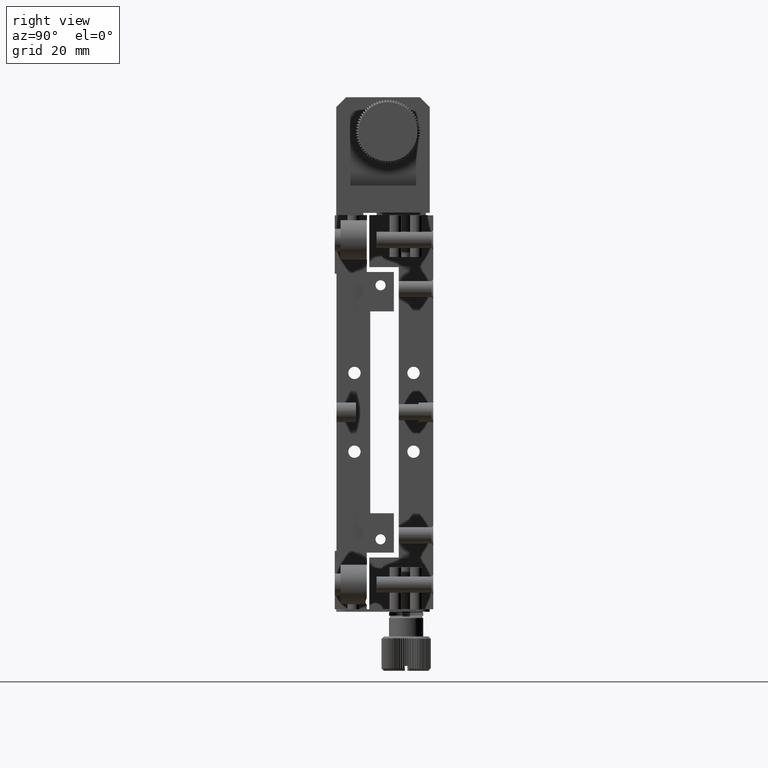
[diagram: clean part render]
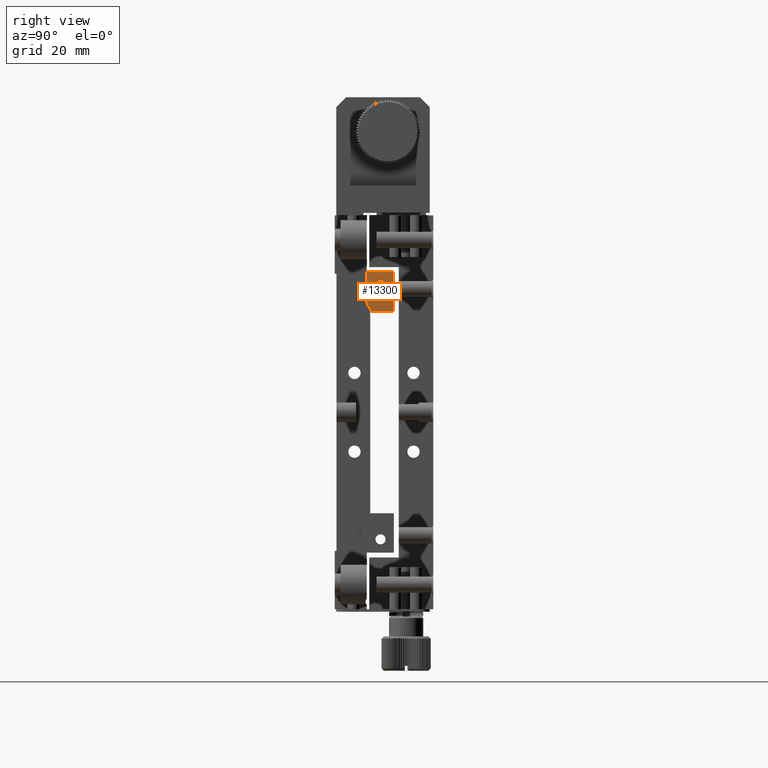
[diagram: same view with one face highlighted and labeled with its STEP entity id]
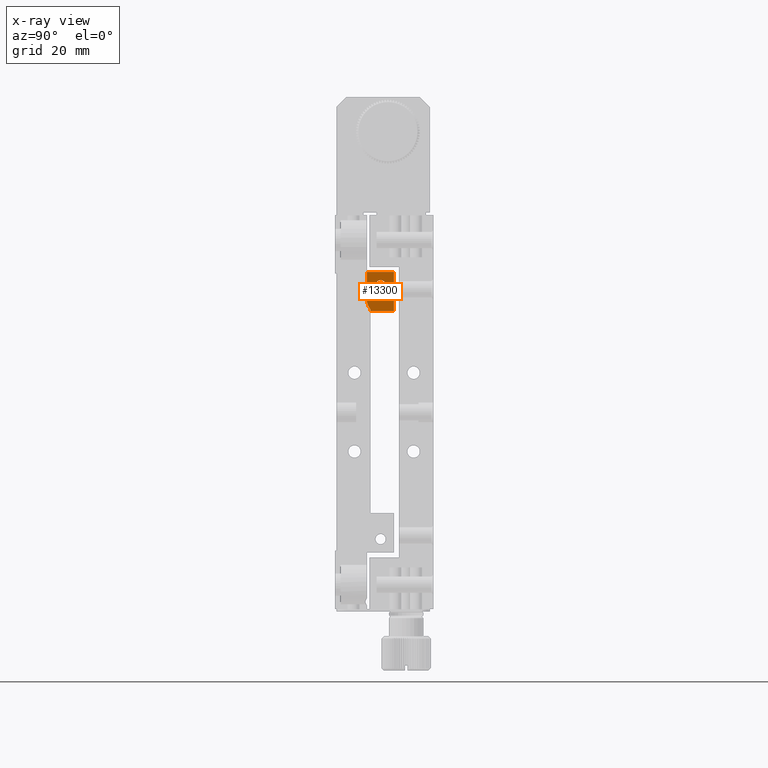
[diagram: x-ray of the same camera — body ghosted, the highlighted face saturated]
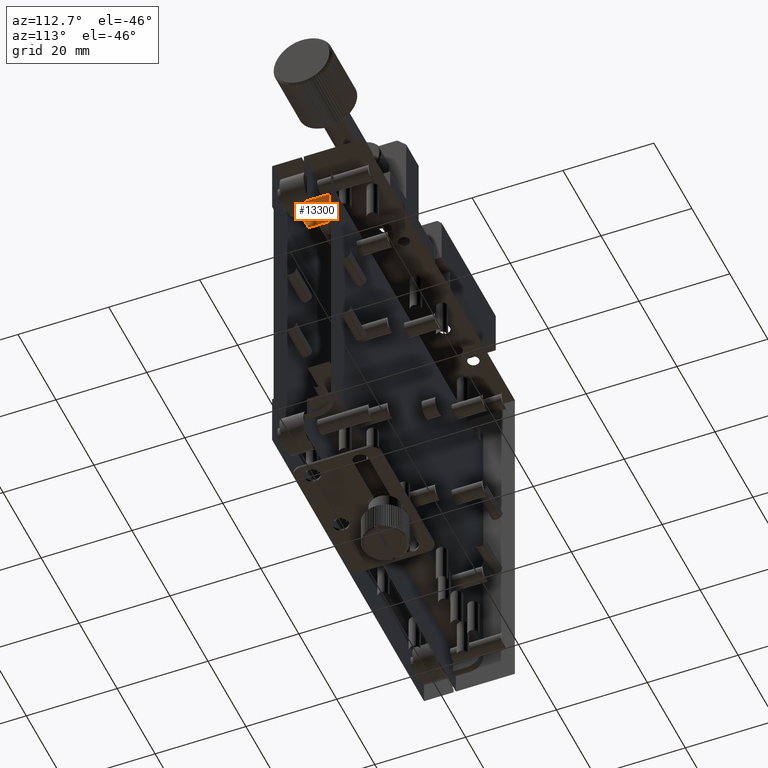
[diagram: same view with one face highlighted and labeled with its STEP entity id]
A machine part, right view. The second image highlights one B-rep face of the part: STEP entity #13300.
The next image is the same camera in x-ray: the body ghosted, the highlighted face saturated — about 0% of this face is hidden behind the body in this view.
A second angle (auxiliary view) of the same face is appended — the face is thin or edge-on in the first view.
In plain terms, the highlighted planar face has unit normal (-1, 0, 0).
Its self-contained STEP definition (entity closure, byte-faithful):
#978 = EDGE_CURVE ( 'NONE', #6726, #9002, #2399, .T. ) ;
#1353 = AXIS2_PLACEMENT_3D ( 'NONE', #3447, #7481, #15330 ) ;
#1741 = ORIENTED_EDGE ( 'NONE', *, *, #9461, .T. ) ;
#2399 = LINE ( 'NONE', #12037, #3853 ) ;
#2489 = DIRECTION ( 'NONE',  ( 0.000000000000000000, -0.000000000000000000, 1.000000000000000000 ) ) ;
#2522 = CARTESIAN_POINT ( 'NONE',  ( 38.02852657937571479, 2.656824835573210031, 20.50000000000000000 ) ) ;
#3004 = VECTOR ( 'NONE', #11512, 1000.000000000000000 ) ;
#3446 = CARTESIAN_POINT ( 'NONE',  ( 38.02852657937571479, -2.843175164426796631, 28.50000000000000711 ) ) ;
#3447 = CARTESIAN_POINT ( 'NONE',  ( 38.02852657937571479, 0.1568248355732024812, 22.89999999999999858 ) ) ;
#3611 = AXIS2_PLACEMENT_3D ( 'NONE', #8349, #12783, #14625 ) ;
#3704 = CIRCLE ( 'NONE', #6602, 2.999999999999999112 ) ;
#3730 = EDGE_LOOP ( 'NONE', ( #8501 ) ) ;
#3822 = CARTESIAN_POINT ( 'NONE',  ( 38.02852657937571479, -9.343175164426799739, 28.50000000000000355 ) ) ;
#3853 = VECTOR ( 'NONE', #6288, 1000.000000000000000 ) ;
#3972 = VERTEX_POINT ( 'NONE', #22318 ) ;
#4258 = EDGE_CURVE ( 'NONE', #17840, #17840, #6533, .T. ) ;
#5172 = DIRECTION ( 'NONE',  ( 1.000000000000000000, 0.000000000000000000, 0.000000000000000000 ) ) ;
#5851 = ORIENTED_EDGE ( 'NONE', *, *, #12829, .T. ) ;
#6024 = VECTOR ( 'NONE', #9442, 1000.000000000000000 ) ;
#6090 = ORIENTED_EDGE ( 'NONE', *, *, #20936, .F. ) ;
#6288 = DIRECTION ( 'NONE',  ( -0.000000000000000000, -1.000000000000000000, 0.000000000000000000 ) ) ;
#6533 = CIRCLE ( 'NONE', #3611, 1.024999999999991251 ) ;
#6602 = AXIS2_PLACEMENT_3D ( 'NONE', #24980, #5172, #21073 ) ;
#6704 = LINE ( 'NONE', #3822, #3004 ) ;
#6726 = VERTEX_POINT ( 'NONE', #2522 ) ;
#6988 = EDGE_CURVE ( 'NONE', #3972, #6726, #9640, .T. ) ;
#7480 = VECTOR ( 'NONE', #19795, 1000.000000000000000 ) ;
#7481 = DIRECTION ( 'NONE',  ( -1.000000000000000000, 0.000000000000000000, 0.000000000000000000 ) ) ;
#7738 = LINE ( 'NONE', #15708, #6024 ) ;
#8334 = VECTOR ( 'NONE', #2489, 1000.000000000000000 ) ;
#8349 = CARTESIAN_POINT ( 'NONE',  ( 38.02852657937571479, -0.04317516442679802946, 25.80000000000000071 ) ) ;
#8501 = ORIENTED_EDGE ( 'NONE', *, *, #4258, .T. ) ;
#8774 = CARTESIAN_POINT ( 'NONE',  ( 38.02852657937571479, -2.143175164426796453, 20.50000000000000000 ) ) ;
#8939 = CARTESIAN_POINT ( 'NONE',  ( 38.02852657937571479, -2.143175164426800894, 20.97386397157418614 ) ) ;
#9002 = VERTEX_POINT ( 'NONE', #8774 ) ;
#9442 = DIRECTION ( 'NONE',  ( 0.000000000000000000, -0.000000000000000000, -1.000000000000000000 ) ) ;
#9461 = EDGE_CURVE ( 'NONE', #14059, #15752, #12116, .T. ) ;
#9640 = LINE ( 'NONE', #14086, #7480 ) ;
#11093 = ORIENTED_EDGE ( 'NONE', *, *, #18607, .F. ) ;
#11512 = DIRECTION ( 'NONE',  ( -0.000000000000000000, 1.000000000000000000, 0.000000000000000000 ) ) ;
#11527 = PLANE ( 'NONE',  #1353 ) ;
#12037 = CARTESIAN_POINT ( 'NONE',  ( 38.02852657937571479, 0.1568248355732024812, 20.50000000000000000 ) ) ;
#12116 = LINE ( 'NONE', #12251, #8334 ) ;
#12251 = CARTESIAN_POINT ( 'NONE',  ( 38.02852657937571479, -2.843175164426796631, 0.000000000000000000 ) ) ;
#12783 = DIRECTION ( 'NONE',  ( 1.000000000000000000, 0.000000000000000000, 0.000000000000000000 ) ) ;
#12829 = EDGE_CURVE ( 'NONE', #15752, #3972, #6704, .T. ) ;
#13300 = ADVANCED_FACE ( 'NONE', ( #19093, #21414 ), #11527, .T. ) ;
#14059 = VERTEX_POINT ( 'NONE', #18766 ) ;
#14086 = CARTESIAN_POINT ( 'NONE',  ( 38.02852657937571479, 2.656824835573210031, 22.89999999999999858 ) ) ;
#14625 = DIRECTION ( 'NONE',  ( 0.000000000000000000, 0.000000000000000000, -1.000000000000000000 ) ) ;
#15330 = DIRECTION ( 'NONE',  ( 0.000000000000000000, 0.000000000000000000, 1.000000000000000000 ) ) ;
#15708 = CARTESIAN_POINT ( 'NONE',  ( 38.02852657937571479, -2.143175164426796453, -20.50000000000000000 ) ) ;
#15752 = VERTEX_POINT ( 'NONE', #3446 ) ;
#17840 = VERTEX_POINT ( 'NONE', #23572 ) ;
#18607 = EDGE_CURVE ( 'NONE', #25407, #9002, #7738, .T. ) ;
#18766 = CARTESIAN_POINT ( 'NONE',  ( 38.02852657937571479, -2.843175164426796631, 22.89999999999999503 ) ) ;
#19093 = FACE_OUTER_BOUND ( 'NONE', #24742, .T. ) ;
#19795 = DIRECTION ( 'NONE',  ( -0.000000000000000000, -0.000000000000000000, -1.000000000000000000 ) ) ;
#20936 = EDGE_CURVE ( 'NONE', #14059, #25407, #3704, .T. ) ;
#21073 = DIRECTION ( 'NONE',  ( 0.000000000000000000, 8.854317741964955179E-16, 1.000000000000000000 ) ) ;
#21339 = ORIENTED_EDGE ( 'NONE', *, *, #978, .T. ) ;
#21414 = FACE_BOUND ( 'NONE', #3730, .T. ) ;
#22318 = CARTESIAN_POINT ( 'NONE',  ( 38.02852657937571479, 2.656824835573210031, 28.50000000000000355 ) ) ;
#23572 = CARTESIAN_POINT ( 'NONE',  ( 38.02852657937571479, -0.04317516442679802946, 24.77500000000000924 ) ) ;
#24193 = ORIENTED_EDGE ( 'NONE', *, *, #6988, .T. ) ;
#24742 = EDGE_LOOP ( 'NONE', ( #6090, #1741, #5851, #24193, #21339, #11093 ) ) ;
#24980 = CARTESIAN_POINT ( 'NONE',  ( 38.02852657937571479, 0.1568248355732024812, 22.89999999999999858 ) ) ;
#25407 = VERTEX_POINT ( 'NONE', #8939 ) ;